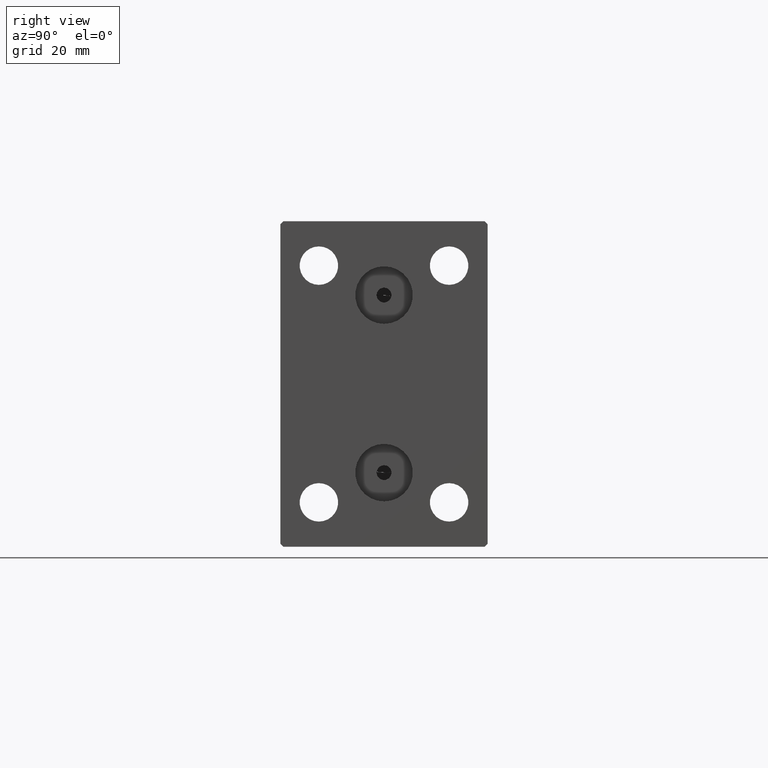
[diagram: clean part render]
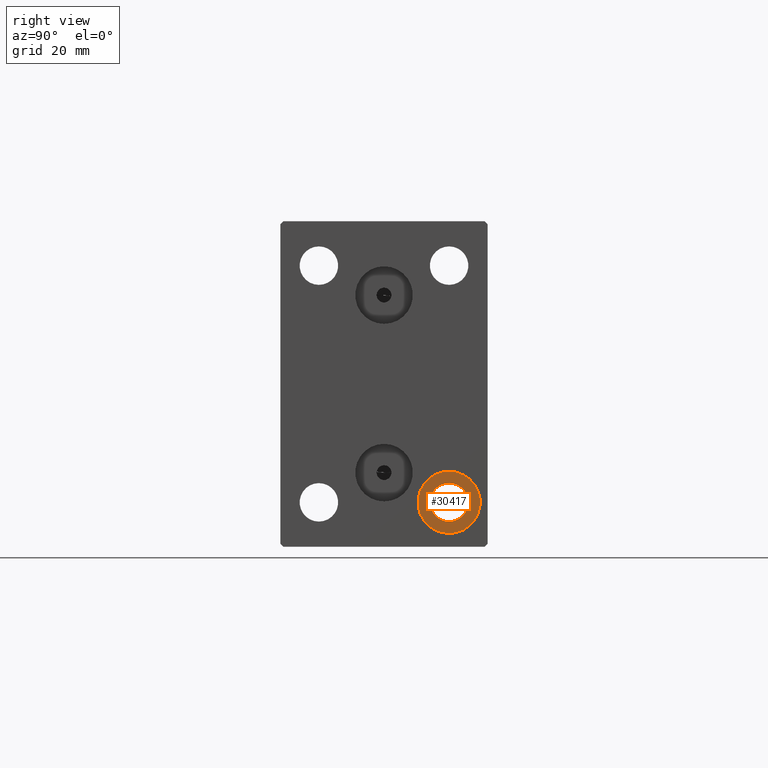
[diagram: same view with one face highlighted and labeled with its STEP entity id]
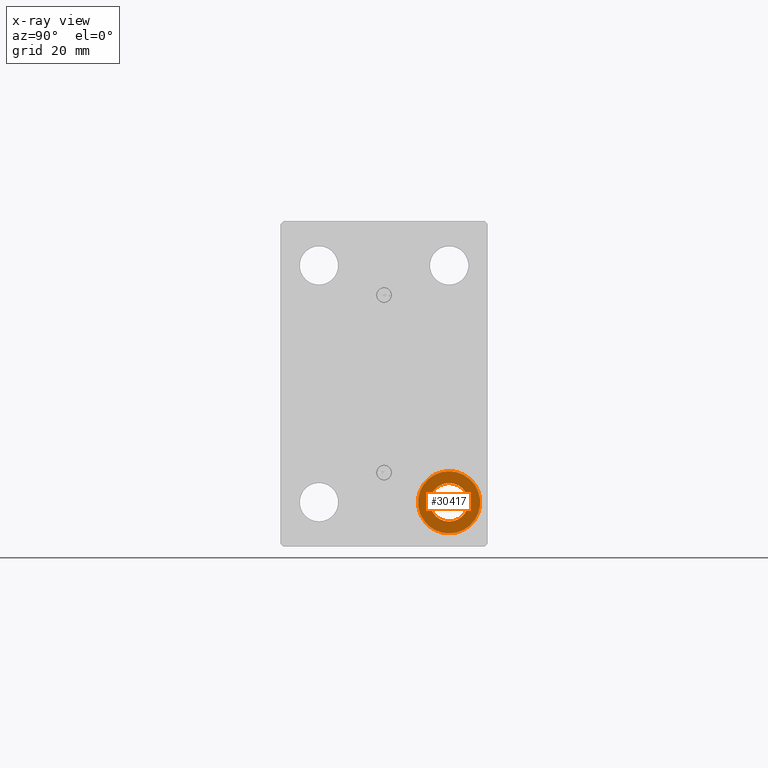
[diagram: x-ray of the same camera — body ghosted, the highlighted face saturated]
A machine part, right view. The second image highlights one B-rep face of the part: STEP entity #30417.
The next image is the same camera in x-ray: the body ghosted, the highlighted face saturated — about 0% of this face is hidden behind the body in this view.
In plain terms, the highlighted planar face has unit normal (1, 0, 0).
Its self-contained STEP definition (entity closure, byte-faithful):
#30 = AXIS2_PLACEMENT_3D ( 'NONE', #23879, #3702, #3473 ) ;
#747 = EDGE_CURVE ( 'NONE', #13617, #42201, #39735, .T. ) ;
#804 = DIRECTION ( 'NONE',  ( -1.000000000000000000, -0.000000000000000000, -0.000000000000000000 ) ) ;
#2655 = EDGE_LOOP ( 'NONE', ( #42884, #12423 ) ) ;
#3473 = DIRECTION ( 'NONE',  ( 0.000000000000000000, 0.000000000000000000, 1.000000000000000000 ) ) ;
#3702 = DIRECTION ( 'NONE',  ( -1.000000000000000000, -0.000000000000000000, -0.000000000000000000 ) ) ;
#8551 = AXIS2_PLACEMENT_3D ( 'NONE', #21796, #8705, #28880 ) ;
#8705 = DIRECTION ( 'NONE',  ( -1.000000000000000000, -0.000000000000000000, -0.000000000000000000 ) ) ;
#9859 = CIRCLE ( 'NONE', #24041, 5.250000000000000888 ) ;
#9868 = CARTESIAN_POINT ( 'NONE',  ( 89.00000000000000000, 11.00000000000000355, -23.25000000000000000 ) ) ;
#11766 = VERTEX_POINT ( 'NONE', #35318 ) ;
#12317 = FACE_BOUND ( 'NONE', #2655, .T. ) ;
#12423 = ORIENTED_EDGE ( 'NONE', *, *, #747, .T. ) ;
#12526 = PLANE ( 'NONE',  #33592 ) ;
#13232 = ORIENTED_EDGE ( 'NONE', *, *, #42951, .F. ) ;
#13617 = VERTEX_POINT ( 'NONE', #9868 ) ;
#14368 = DIRECTION ( 'NONE',  ( -1.000000000000000000, -0.000000000000000000, -0.000000000000000000 ) ) ;
#16724 = ORIENTED_EDGE ( 'NONE', *, *, #17672, .F. ) ;
#17269 = DIRECTION ( 'NONE',  ( 0.000000000000000000, 0.000000000000000000, -1.000000000000000000 ) ) ;
#17672 = EDGE_CURVE ( 'NONE', #37029, #11766, #9859, .T. ) ;
#19159 = CIRCLE ( 'NONE', #30, 5.250000000000000888 ) ;
#20461 = CARTESIAN_POINT ( 'NONE',  ( 89.00000000000000000, 11.00000000000000355, -25.25000000000000000 ) ) ;
#21796 = CARTESIAN_POINT ( 'NONE',  ( 89.00000000000000000, 11.00000000000000355, -20.00000000000000000 ) ) ;
#22255 = DIRECTION ( 'NONE',  ( 0.000000000000000000, 0.000000000000000000, 1.000000000000000000 ) ) ;
#23879 = CARTESIAN_POINT ( 'NONE',  ( 89.00000000000000000, 11.00000000000000355, -20.00000000000000000 ) ) ;
#24041 = AXIS2_PLACEMENT_3D ( 'NONE', #25793, #804, #22255 ) ;
#25793 = CARTESIAN_POINT ( 'NONE',  ( 89.00000000000000000, 11.00000000000000355, -20.00000000000000000 ) ) ;
#25857 = CARTESIAN_POINT ( 'NONE',  ( 89.00000000000000000, 11.00000000000000355, -20.00000000000000000 ) ) ;
#26065 = DIRECTION ( 'NONE',  ( 1.000000000000000000, 0.000000000000000000, -0.000000000000000000 ) ) ;
#28880 = DIRECTION ( 'NONE',  ( 0.000000000000000000, 0.000000000000000000, -1.000000000000000000 ) ) ;
#29185 = FACE_OUTER_BOUND ( 'NONE', #40066, .T. ) ;
#30417 = ADVANCED_FACE ( 'NONE', ( #29185, #12317 ), #12526, .T. ) ;
#32303 = CIRCLE ( 'NONE', #40790, 3.249999999999999556 ) ;
#33307 = CARTESIAN_POINT ( 'NONE',  ( 89.00000000000000000, 11.00000000000000355, -16.75000000000000000 ) ) ;
#33592 = AXIS2_PLACEMENT_3D ( 'NONE', #25857, #26065, #39623 ) ;
#34145 = CARTESIAN_POINT ( 'NONE',  ( 89.00000000000000000, 11.00000000000000355, -20.00000000000000000 ) ) ;
#35318 = CARTESIAN_POINT ( 'NONE',  ( 89.00000000000000000, 11.00000000000000355, -14.75000000000000000 ) ) ;
#37029 = VERTEX_POINT ( 'NONE', #20461 ) ;
#39569 = EDGE_CURVE ( 'NONE', #42201, #13617, #32303, .T. ) ;
#39623 = DIRECTION ( 'NONE',  ( 0.000000000000000000, 0.000000000000000000, 1.000000000000000000 ) ) ;
#39735 = CIRCLE ( 'NONE', #8551, 3.249999999999999556 ) ;
#40066 = EDGE_LOOP ( 'NONE', ( #16724, #13232 ) ) ;
#40790 = AXIS2_PLACEMENT_3D ( 'NONE', #34145, #14368, #17269 ) ;
#42201 = VERTEX_POINT ( 'NONE', #33307 ) ;
#42884 = ORIENTED_EDGE ( 'NONE', *, *, #39569, .T. ) ;
#42951 = EDGE_CURVE ( 'NONE', #11766, #37029, #19159, .T. ) ;